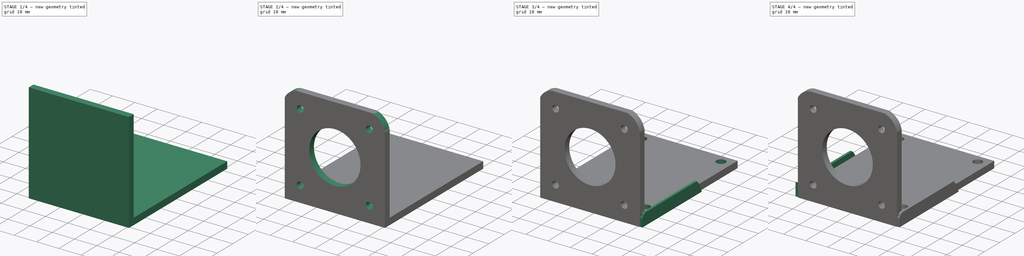
[diagram: build sequence overview — one tinted view per stage of 4, left to right]
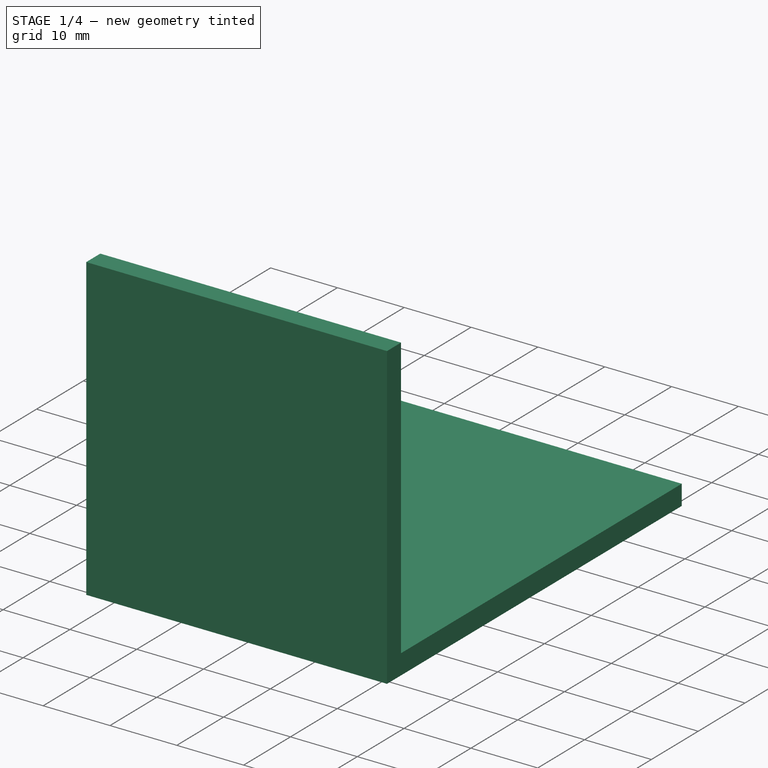
[diagram: stage 1 of 4 — iso view after this stage's code; geometry added in this stage tinted green]
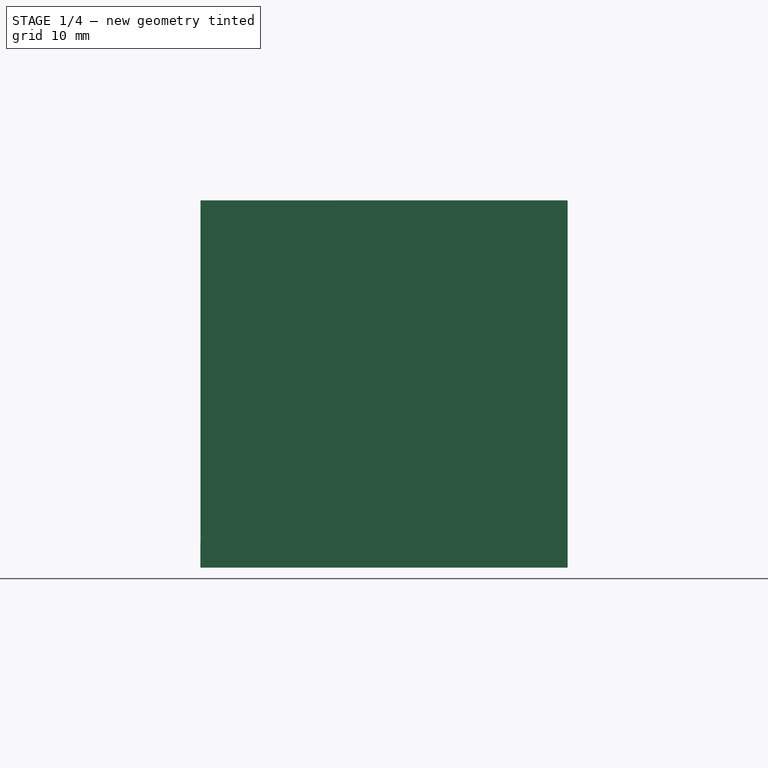
[diagram: stage 1 of 4 — front view after this stage's code; geometry added in this stage tinted green]
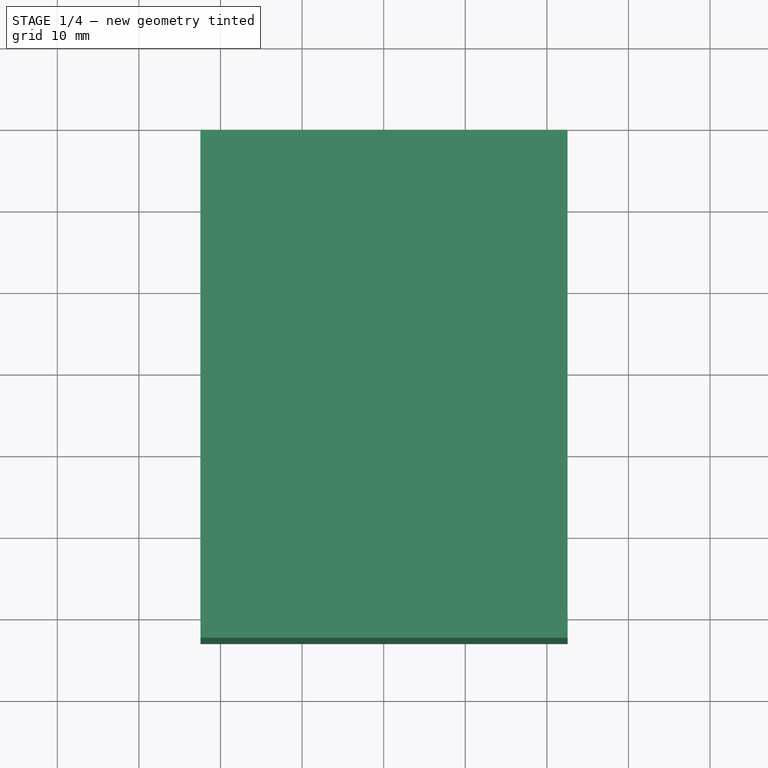
[diagram: stage 1 of 4 — top view after this stage's code; geometry added in this stage tinted green]
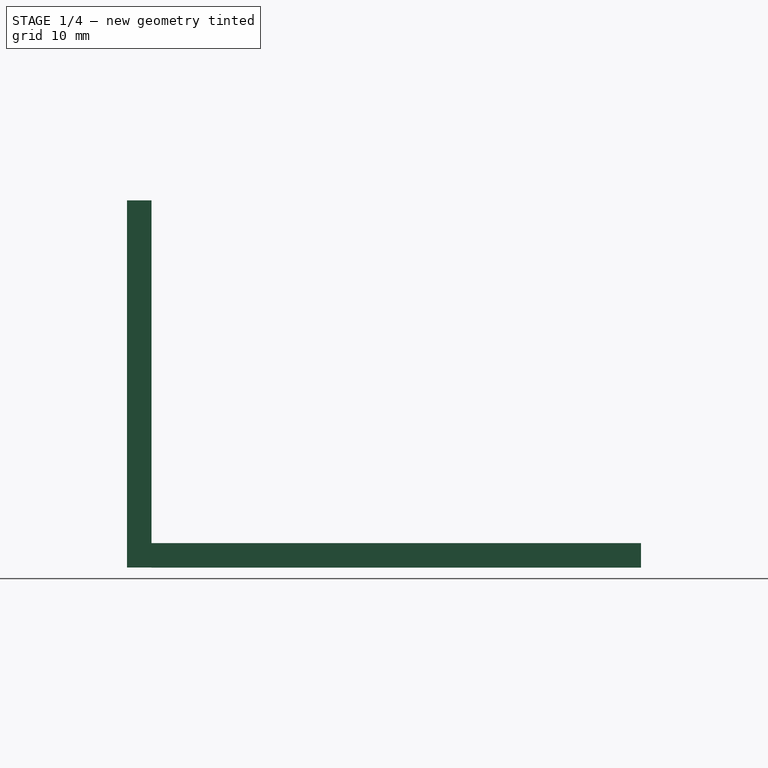
[diagram: stage 1 of 4 — right view after this stage's code; geometry added in this stage tinted green]
FCSTD DOCUMENT  (FreeCAD 1.0R39109 (Git))
Label: Motor soporte
License: All rights reserved
LicenseURL: https://en.wikipedia.org/wiki/All_rights_reserved
objects: TechDraw::DrawViewDimension×28, Sketcher::SketchObject×11, PartDesign::Pocket×5, PartDesign::Pad×4, TechDraw::DrawProjGroupItem×3, PartDesign::Body×1, TechDraw::DrawSVGTemplate×1, TechDraw::DrawViewImage×1, TechDraw::DrawPage×1
note: 85 computed .brp shape members not serialized (recipe doc carries the construction recipe); baked Part::Feature solids carry a one-line shape summary decoded from their .brp

FEATURE [Sketcher::SketchObject] Sketch
  ArcFitTolerance = 1e-06
  AttachmentSupport = -> [XZ_Plane]
  FullyConstrained = false
  MakeInternals = false
  MapMode = 5
  Placement = pos=(0,0,0) rot=(1,0,0;1.5708rad)
  sketch-geometry (5):
    g0: GeomPoint [constr] X=0 Y=0 Z=0
    g1: LineSegment StartX=-22.4568 StartY=0 StartZ=0 EndX=22.5432 EndY=0 EndZ=0
    g2: LineSegment StartX=22.5432 StartY=0 StartZ=0 EndX=22.5432 EndY=45 EndZ=0
    g3: LineSegment StartX=22.5432 StartY=45 StartZ=0 EndX=-22.4568 EndY=45 EndZ=0
    g4: LineSegment StartX=-22.4568 StartY=45 StartZ=0 EndX=-22.4568 EndY=0 EndZ=0
  constraints (12):
    c: Coincident(g0,g-1)
    c: Coincident(g1,g2)
    c: Coincident(g2,g3)
    c: Coincident(g3,g4)
    c: Coincident(g4,g1)
    c: Horizontal(g1)
    c: Horizontal(g3)
    c: Vertical(g2)
    c: Vertical(g4)
    c: Distance(g2,g4) = 45
    c: Distance(g1,g3) = 45
    c: PointOnObject(g1,g-1)
FEATURE [Sketcher::SketchObject] Sketch002
  ArcFitTolerance = 1e-06
  FullyConstrained = false
  MakeInternals = false
  MapMode = 5
  Placement = pos=(0,0,3) rot=(0,0,1;3.14159rad)
  sketch-geometry (6):
    g0: ArcOfCircle CenterX=-16.1899 CenterY=-33.9376 CenterZ=0 NormalX=0 NormalY=0 NormalZ=1 AngleXU=0 Radius=6.47853 StartAngle=3.14159 EndAngle=4.71239
    g1: LineSegment StartX=-22.6685 StartY=-33.9376 StartZ=0 EndX=-22.6685 EndY=-40.4161 EndZ=0
    g2: LineSegment StartX=-16.1899 StartY=-40.4161 StartZ=0 EndX=-22.6685 EndY=-40.4161 EndZ=0
    g3: ArcOfCircle CenterX=15.1827 CenterY=-33.4839 CenterZ=0 NormalX=0 NormalY=0 NormalZ=1 AngleXU=0 Radius=7.71013 StartAngle=4.95421 EndAngle=6.11137
    g4: LineSegment StartX=17.029 StartY=-40.9697 StartZ=0 EndX=22.8388 EndY=-40.9697 EndZ=0
    g5: LineSegment StartX=22.7793 StartY=-34.8021 StartZ=0 EndX=22.8388 EndY=-40.9697 EndZ=0
  constraints (9):
    c: Tangent(g1,g0) = -1.5708
    c: Vertical(g1)
    c: Tangent(g2,g0) = 1.5708
    c: Coincident(g2,g1)
    c: Horizontal(g2)
    c: Coincident(g4,g3)
    c: Horizontal(g4)
    c: Coincident(g5,g3)
    c: Coincident(g5,g4)
FEATURE [Sketcher::SketchObject] Sketch003
  ArcFitTolerance = 1e-06
  FullyConstrained = false
  MakeInternals = false
  MapMode = 5
  Placement = pos=(0,-2,0) rot=(1,0,0;1.5708rad)
  sketch-geometry (6):
    g0: ArcOfCircle CenterX=-15.9253 CenterY=37.8788 CenterZ=0 NormalX=0 NormalY=0 NormalZ=1 AngleXU=0 Radius=7.20465 StartAngle=1.59551 EndAngle=3.14159
    g1: LineSegment StartX=-23.13 StartY=37.8788 StartZ=0 EndX=-23.13 EndY=45.0813 EndZ=0
    g2: LineSegment StartX=-16.1034 StartY=45.0813 StartZ=0 EndX=-23.13 EndY=45.0813 EndZ=0
    g3: ArcOfCircle CenterX=14.4667 CenterY=37.1484 CenterZ=0 NormalX=0 NormalY=0 NormalZ=1 AngleXU=0 Radius=8.22076 StartAngle=0 EndAngle=1.5708
    g4: LineSegment StartX=14.4667 StartY=45.3692 StartZ=0 EndX=22.6874 EndY=45.3692 EndZ=0
    g5: LineSegment StartX=22.6874 StartY=37.1484 StartZ=0 EndX=22.6874 EndY=45.3692 EndZ=0
  constraints (10):
    c: Tangent(g1,g0) = 1.5708
    c: Vertical(g1)
    c: Coincident(g2,g0)
    c: Coincident(g2,g1)
    c: Horizontal(g2)
    c: Tangent(g4,g3) = 1.5708
    c: Horizontal(g4)
    c: Tangent(g5,g3) = -1.5708
    c: Coincident(g5,g4)
    c: Vertical(g5)
FEATURE [Sketcher::SketchObject] Sketch004
  ArcFitTolerance = 1e-06
  FullyConstrained = false
  MakeInternals = false
  MapMode = 5
  Placement = pos=(0,-2,0) rot=(1,0,0;1.5708rad)
  sketch-geometry (5):
    g0: Circle CenterX=0.049257 CenterY=22.56 CenterZ=0 NormalX=0 NormalY=0 NormalZ=1 AngleXU=0 Radius=11.5
    g1: Circle CenterX=15.4723 CenterY=7.06 CenterZ=0 NormalX=0 NormalY=0 NormalZ=1 AngleXU=0 Radius=1.5
    g2: Circle CenterX=-15.5277 CenterY=38.06 CenterZ=0 NormalX=0 NormalY=0 NormalZ=1 AngleXU=0 Radius=1.5
    g3: Circle CenterX=15.4723 CenterY=38.06 CenterZ=0 NormalX=0 NormalY=0 NormalZ=1 AngleXU=0 Radius=1.5
    g4: Circle CenterX=-15.5277 CenterY=7.06 CenterZ=0 NormalX=0 NormalY=0 NormalZ=1 AngleXU=0 Radius=1.5
  constraints (5):
    c: Diameter(g0) = 23
    c: Diameter(g1) = 3
    c: Diameter(g2) = 3
    c: Diameter(g3) = 3
    c: Diameter(g4) = 3
FEATURE [Sketcher::SketchObject] Sketch005
  ArcFitTolerance = 1e-06
  FullyConstrained = false
  MakeInternals = false
  MapMode = 5
  Placement = pos=(0,0,3) rot=(0,0,1;3.14159rad)
  sketch-geometry (4):
    g0: Circle CenterX=-17.8168 CenterY=-7.45832 CenterZ=0 NormalX=0 NormalY=0 NormalZ=1 AngleXU=0 Radius=2
    g1: Circle CenterX=18.0988 CenterY=-7.21443 CenterZ=0 NormalX=0 NormalY=0 NormalZ=1 AngleXU=0 Radius=2
    g2: Circle CenterX=-17.949 CenterY=-55.8412 CenterZ=0 NormalX=0 NormalY=0 NormalZ=1 AngleXU=0 Radius=2
    g3: Circle CenterX=17.5047 CenterY=-55.429 CenterZ=0 NormalX=0 NormalY=0 NormalZ=1 AngleXU=0 Radius=2
  constraints (4):
    c: Diameter(g0) = 4
    c: Diameter(g1) = 4
    c: Diameter(g2) = 4
    c: Diameter(g3) = 4
FEATURE [Sketcher::SketchObject] Sketch006
  ArcFitTolerance = 1e-06
  FullyConstrained = false
  MakeInternals = false
  MapMode = 5
  Placement = pos=(0,0,3) rot=(0,0,1;3.14159rad)
  sketch-geometry (4):
    g0: Circle CenterX=-17.8522 CenterY=-7.46173 CenterZ=0 NormalX=0 NormalY=0 NormalZ=1 AngleXU=0 Radius=1.5
    g1: Circle CenterX=18.0641 CenterY=-7.21573 CenterZ=0 NormalX=0 NormalY=0 NormalZ=1 AngleXU=0 Radius=1.5
    g2: Circle CenterX=17.4491 CenterY=-35.506 CenterZ=0 NormalX=0 NormalY=0 NormalZ=1 AngleXU=0 Radius=1.5
    g3: Circle CenterX=-17.9752 CenterY=-35.875 CenterZ=0 NormalX=0 NormalY=0 NormalZ=1 AngleXU=0 Radius=1.5
  constraints (4):
    c: Diameter(g0) = 3
    c: Diameter(g1) = 3
    c: Diameter(g2) = 3
    c: Diameter(g3) = 3
FEATURE [PartDesign::Pad] Pad
  Direction = (0,-1,2e-16)
  Length = 3
  Length2 = 10
  Placement = pos=(0,0,0) rot=(1,0,0;1.5708rad)
  Profile = -> Sketch
  ReferenceAxis = -> Sketch [N_Axis]
  Refine = true
  Suppressed = false
  Type = 0
FEATURE [Sketcher::SketchObject] Sketch007
  ArcFitTolerance = 1e-06
  AttachmentSupport = -> [Pad]
  FullyConstrained = false
  MakeInternals = false
  MapMode = 5
  Placement = pos=(0,5e-15,0) rot=(-1,0,0;1.5708rad)
  sketch-geometry (4):
    g0: LineSegment StartX=-22.463 StartY=-2.99343 StartZ=0 EndX=22.537 EndY=-2.99343 EndZ=0
    g1: LineSegment StartX=22.537 StartY=-2.99343 StartZ=0 EndX=22.537 EndY=0.006574 EndZ=0
    g2: LineSegment StartX=22.537 StartY=0.006574 StartZ=0 EndX=-22.463 EndY=0.006574 EndZ=0
    g3: LineSegment StartX=-22.463 StartY=0.006574 StartZ=0 EndX=-22.463 EndY=-2.99343 EndZ=0
  constraints (9):
    c: Coincident(g0,g1)
    c: Coincident(g1,g2)
    c: Coincident(g2,g3)
    c: Coincident(g3,g0)
    c: Horizontal(g0)
    c: Horizontal(g2)
    c: Vertical(g1)
    c: Vertical(g3)
    c: Distance(g0,g2) = 3
FEATURE [PartDesign::Pad] Pad001
  BaseFeature = -> Pad
  Direction = (0,1,2e-16)
  Length = 60
  Length2 = 10
  Placement = pos=(0,0,0) rot=(1,0,0;1.5708rad)
  Profile = -> Sketch007
  ReferenceAxis = -> Sketch007 [N_Axis]
  Refine = true
  Suppressed = false
  Type = 0
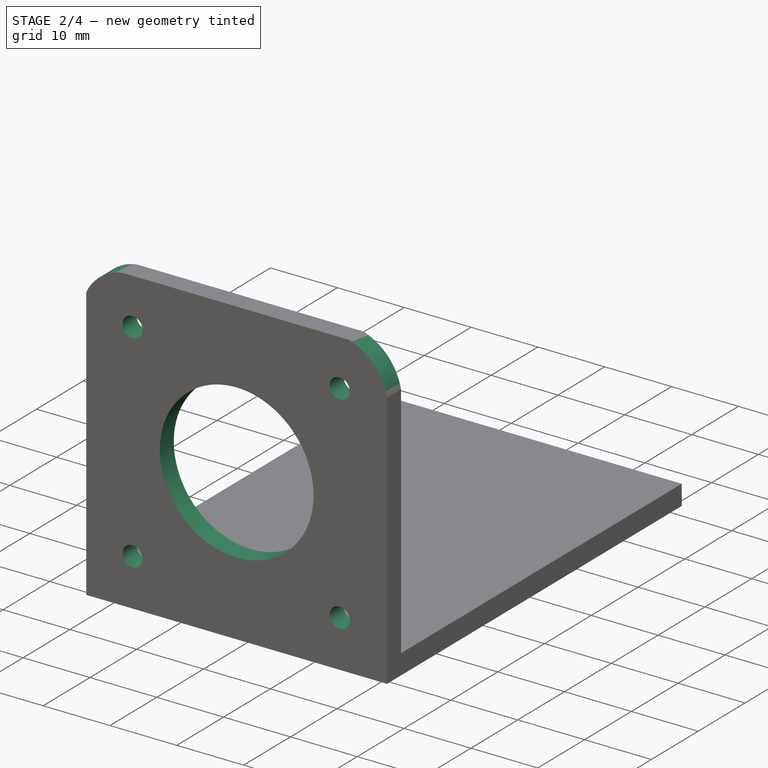
[diagram: stage 2 of 4 — iso view after this stage's code; geometry added in this stage tinted green]
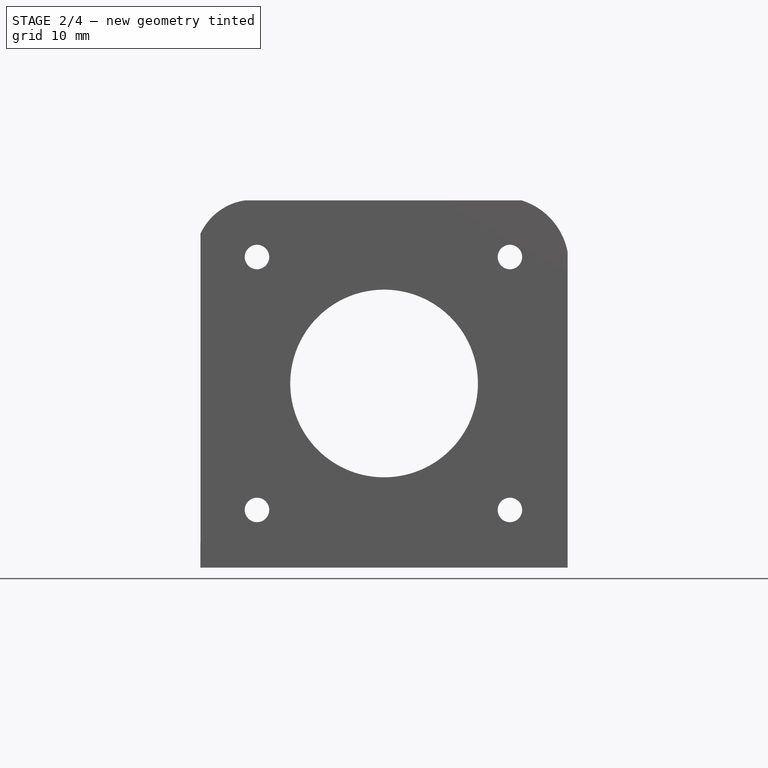
[diagram: stage 2 of 4 — front view after this stage's code; geometry added in this stage tinted green]
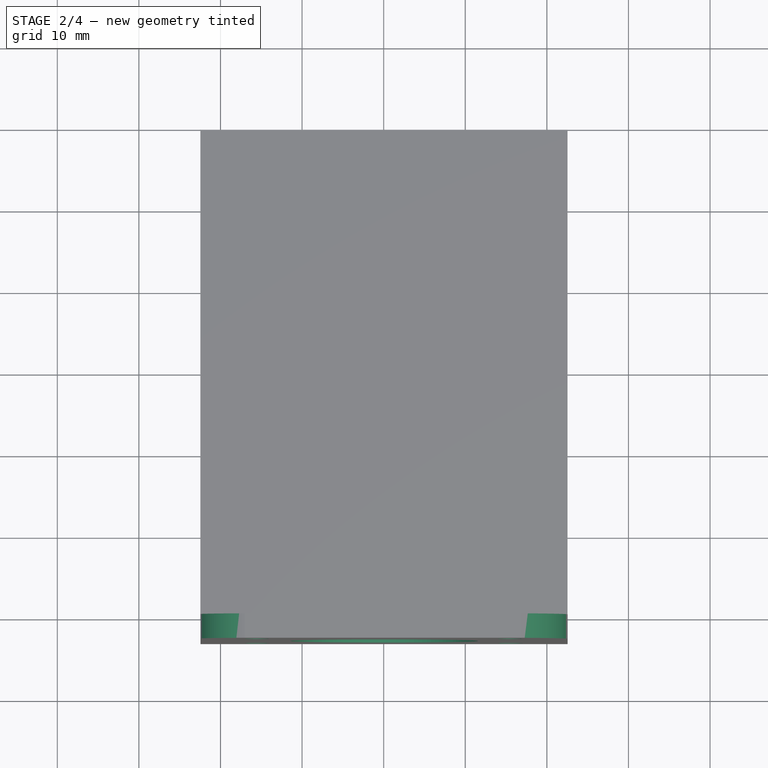
[diagram: stage 2 of 4 — top view after this stage's code; geometry added in this stage tinted green]
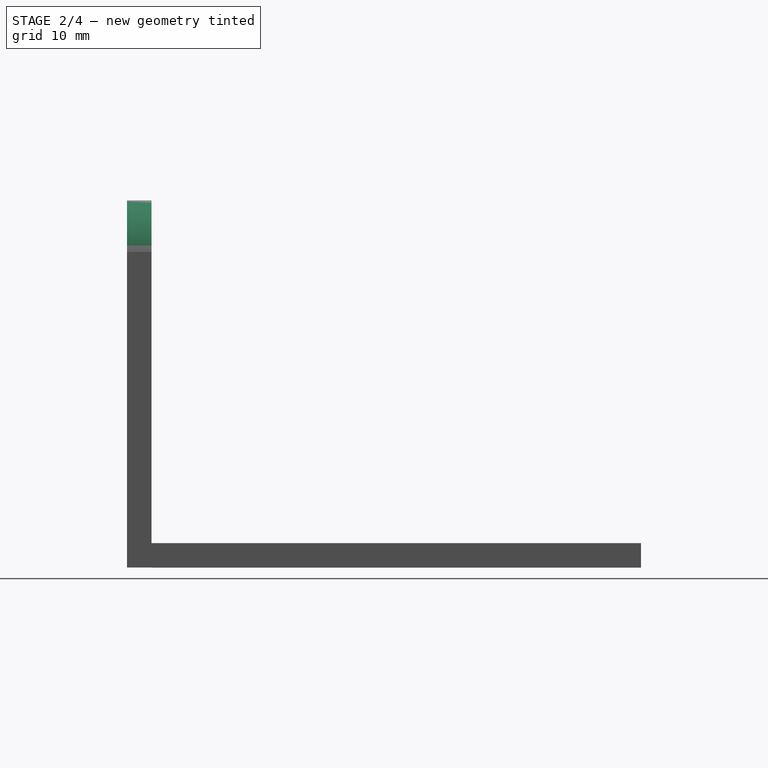
[diagram: stage 2 of 4 — right view after this stage's code; geometry added in this stage tinted green]
FEATURE [PartDesign::Pocket] Pocket
  BaseFeature = -> Pad001
  Direction = (0,1,0)
  Length = 5
  Length2 = 5
  Midplane = true
  Placement = pos=(0,0,0) rot=(1,0,0;1.5708rad)
  Profile = -> Sketch003
  ReferenceAxis = -> Sketch003 [N_Axis]
  Refine = true
  Suppressed = false
  Type = 0
FEATURE [PartDesign::Pocket] Pocket001
  BaseFeature = -> Pocket
  Direction = (0,1,0)
  Length = 6
  Length2 = 5
  Midplane = true
  Placement = pos=(0,0,0) rot=(1,0,0;1.5708rad)
  Profile = -> Sketch004
  ReferenceAxis = -> Sketch004 [N_Axis]
  Refine = true
  Suppressed = false
  Type = 0
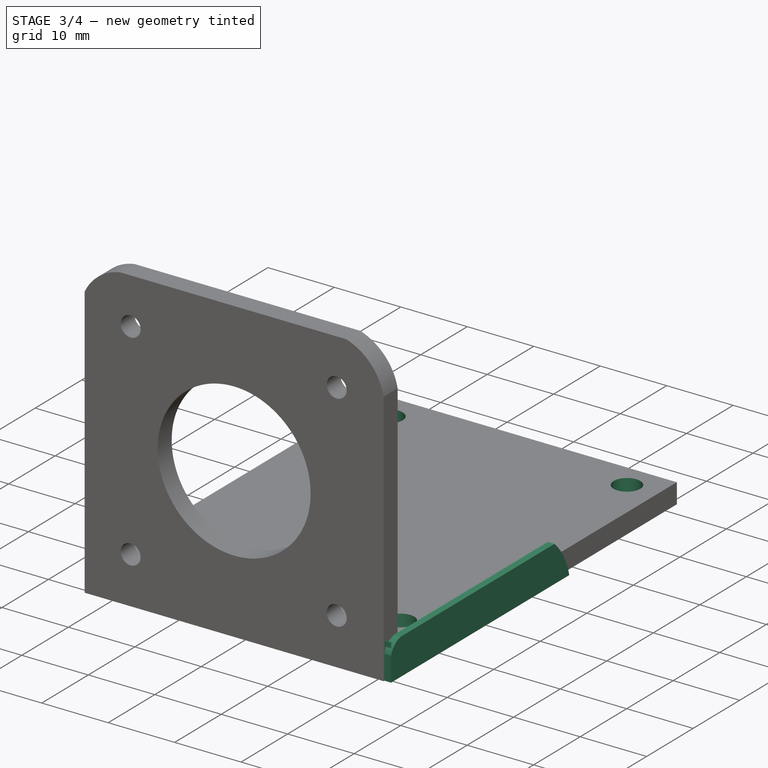
[diagram: stage 3 of 4 — iso view after this stage's code; geometry added in this stage tinted green]
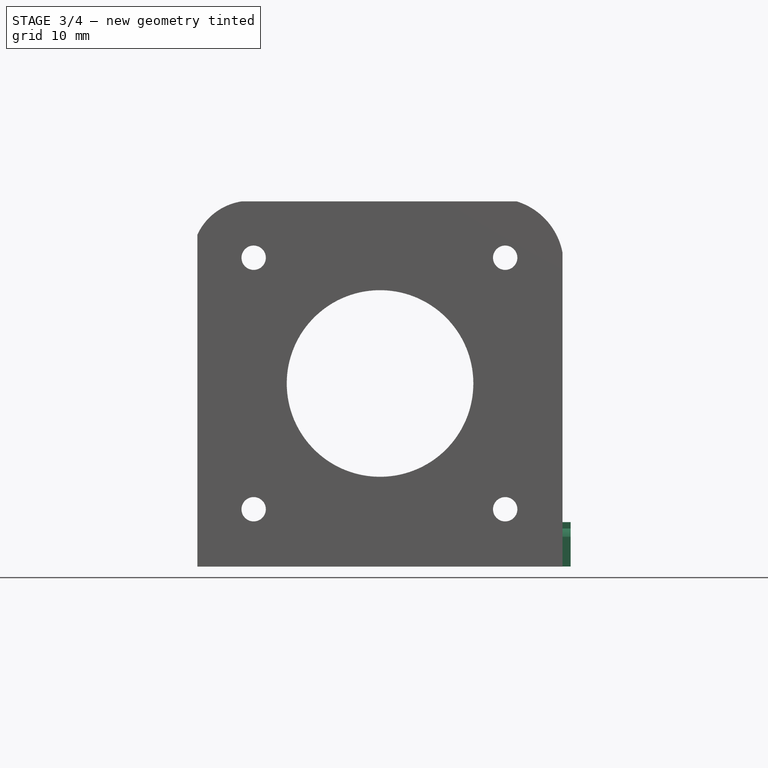
[diagram: stage 3 of 4 — front view after this stage's code; geometry added in this stage tinted green]
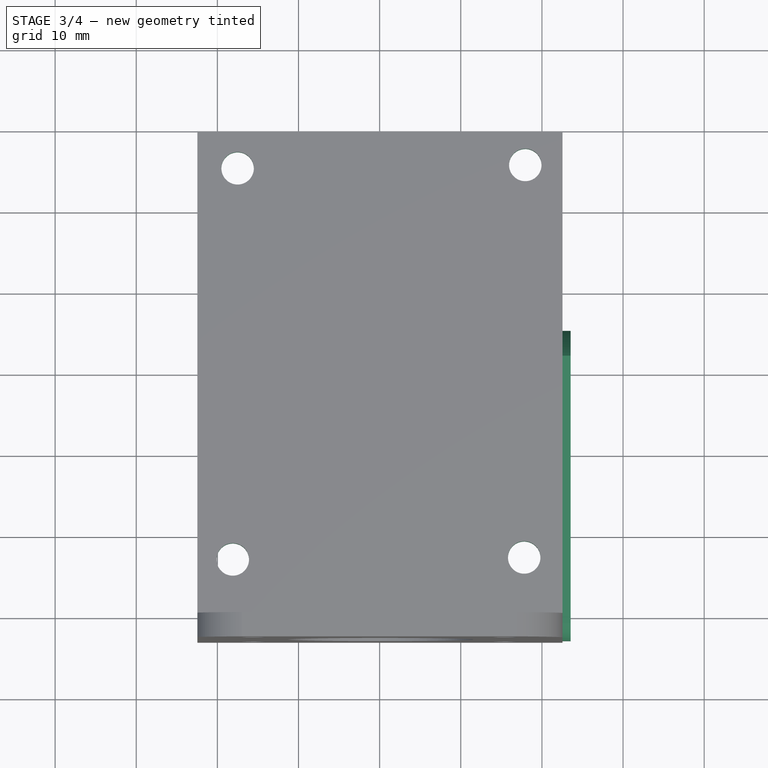
[diagram: stage 3 of 4 — top view after this stage's code; geometry added in this stage tinted green]
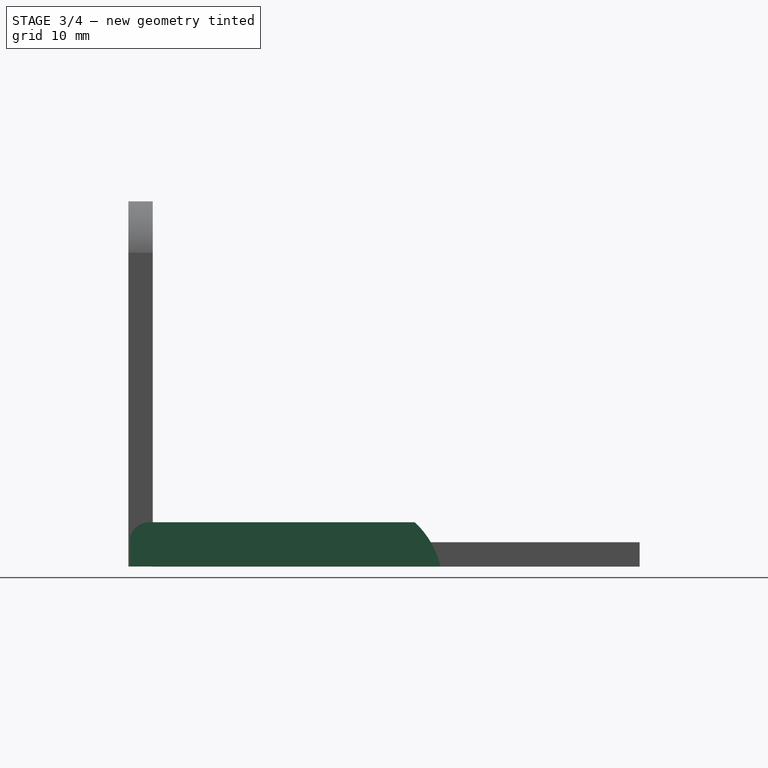
[diagram: stage 3 of 4 — right view after this stage's code; geometry added in this stage tinted green]
FEATURE [PartDesign::Pocket] Pocket002
  BaseFeature = -> Pocket001
  Direction = (0,0,-1)
  Length = 5
  Length2 = 5
  Placement = pos=(0,0,0) rot=(1,0,0;1.5708rad)
  Profile = -> Sketch005
  ReferenceAxis = -> Sketch005 [N_Axis]
  Refine = true
  Suppressed = false
  Type = 0
FEATURE [Sketcher::SketchObject] Sketch008
  ArcFitTolerance = 1e-06
  AttachmentSupport = -> [Pocket002]
  FullyConstrained = false
  MakeInternals = false
  MapMode = 5
  Placement = pos=(22.537,0,0) rot=(0.707107,0,0.707107;3.14159rad)
  sketch-geometry (4):
    g0: LineSegment StartX=0 StartY=2.82378 StartZ=0 EndX=0 EndY=-35.4439 EndZ=0
    g1: LineSegment StartX=0 StartY=-35.4439 StartZ=0 EndX=5.46647 EndY=-35.4439 EndZ=0
    g2: LineSegment StartX=5.46647 StartY=-35.4439 StartZ=0 EndX=5.46647 EndY=2.82378 EndZ=0
    g3: LineSegment StartX=5.46647 StartY=2.82378 StartZ=0 EndX=0 EndY=2.82378 EndZ=0
  constraints (9):
    c: Coincident(g0,g1)
    c: Coincident(g1,g2)
    c: Coincident(g2,g3)
    c: Coincident(g3,g0)
    c: Vertical(g0)
    c: Vertical(g2)
    c: Horizontal(g1)
    c: Horizontal(g3)
    c: PointOnObject(g0,g-2)
FEATURE [PartDesign::Pad] Pad002
  BaseFeature = -> Pocket002
  Direction = (1,0,-2e-16)
  Length = 1
  Length2 = 10
  Placement = pos=(0,0,0) rot=(1,0,0;1.5708rad)
  Profile = -> Sketch008
  ReferenceAxis = -> Sketch008 [N_Axis]
  Refine = true
  Suppressed = false
  Type = 0
FEATURE [Sketcher::SketchObject] Sketch009
  ArcFitTolerance = 1e-06
  AttachmentSupport = -> [Pad002]
  FullyConstrained = false
  MakeInternals = false
  MapMode = 5
  Placement = pos=(23.537,0,0) rot=(0.707107,0,0.707107;3.14159rad)
  sketch-geometry (7):
    g0: ArcOfCircle CenterX=2.84704 CenterY=0.31021 CenterZ=0 NormalX=0 NormalY=0 NormalZ=1 AngleXU=0 Radius=2.64424 StartAngle=6.11689 EndAngle=7.65594
    g1: ArcOfCircle CenterX=-2.5102 CenterY=-24.8626 CenterZ=0 NormalX=0 NormalY=0 NormalZ=1 AngleXU=0 Radius=10.8961 StartAngle=4.94485 EndAngle=5.53217
    g2: LineSegment StartX=3.36729 StartY=2.90276 StartZ=0 EndX=7.96368 EndY=2.62636 EndZ=0
    g3: LineSegment StartX=7.96368 StartY=2.62636 StartZ=0 EndX=7.96368 EndY=-32.5246 EndZ=0
    g4: LineSegment StartX=7.96368 StartY=-32.5246 StartZ=0 EndX=6.48222 EndY=-36.0262 EndZ=0
    g5: LineSegment StartX=6.48222 StartY=-36.0262 StartZ=0 EndX=0 EndY=-35.4656 EndZ=0
    g6: LineSegment StartX=5.4548 StartY=-0.127493 StartZ=0 EndX=5.4548 EndY=-32.2979 EndZ=0
  constraints (10):
    c: PointOnObject(g1,g-2)
    c: Coincident(g2,g0)
    c: Coincident(g3,g2)
    c: Vertical(g3)
    c: Coincident(g4,g3)
    c: Coincident(g5,g4)
    c: Coincident(g5,g1)
    c: Coincident(g6,g0)
    c: Coincident(g6,g1)
    c: Vertical(g6)
FEATURE [PartDesign::Pocket] Pocket003
  BaseFeature = -> Pad002
  Direction = (-1,0,2e-16)
  Length = 1
  Length2 = 5
  Placement = pos=(0,0,0) rot=(1,0,0;1.5708rad)
  Profile = -> Sketch009
  ReferenceAxis = -> Sketch009 [N_Axis]
  Refine = true
  Suppressed = false
  Type = 0
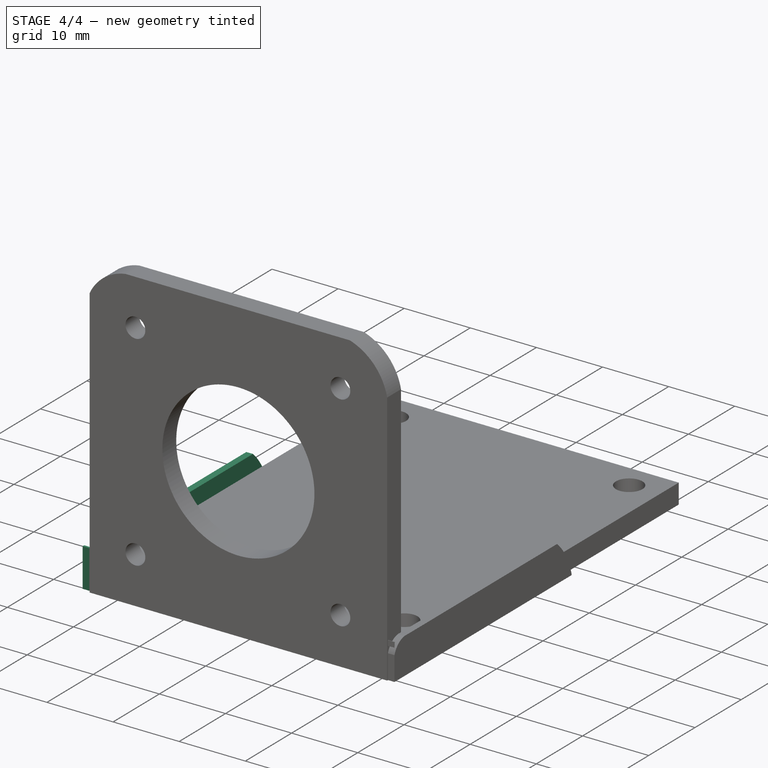
[diagram: stage 4 of 4 — iso view after this stage's code; geometry added in this stage tinted green]
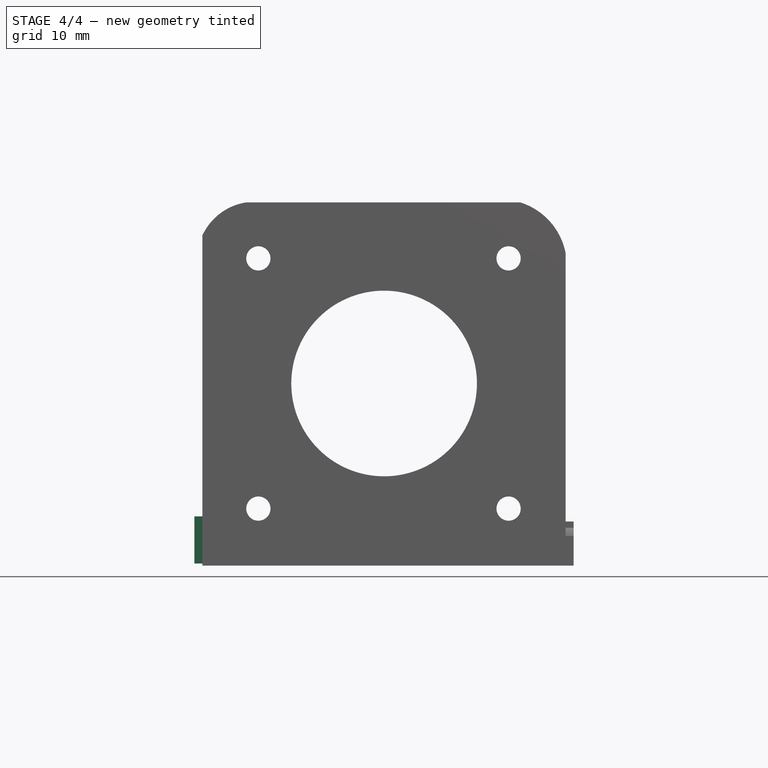
[diagram: stage 4 of 4 — front view after this stage's code; geometry added in this stage tinted green]
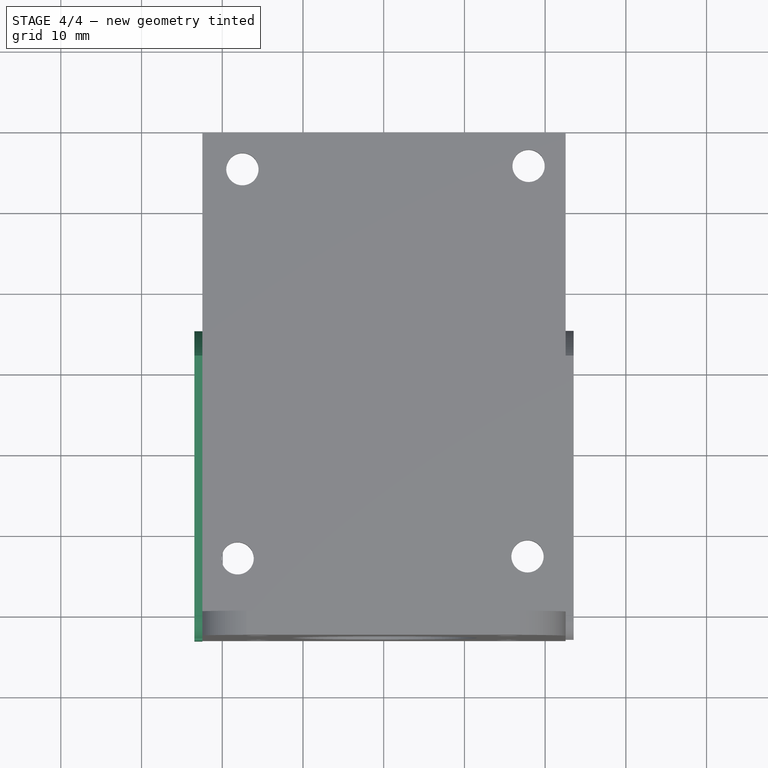
[diagram: stage 4 of 4 — top view after this stage's code; geometry added in this stage tinted green]
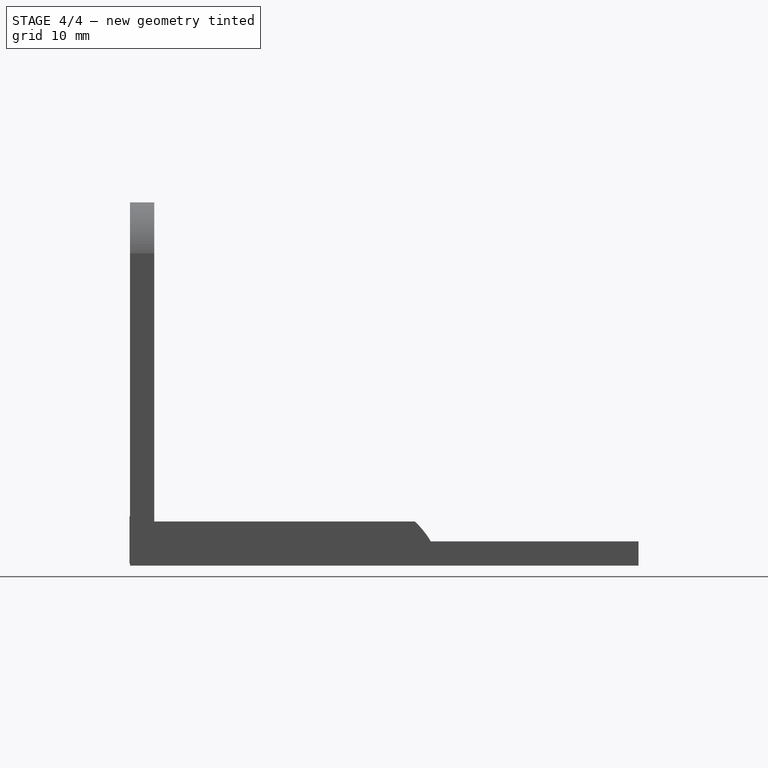
[diagram: stage 4 of 4 — right view after this stage's code; geometry added in this stage tinted green]
FEATURE [Sketcher::SketchObject] Sketch010
  ArcFitTolerance = 1e-06
  AttachmentSupport = -> [Pocket003]
  FullyConstrained = false
  MakeInternals = false
  MapMode = 5
  Placement = pos=(-22.463,0,0) rot=(0.707107,0,-0.707107;3.14159rad)
  sketch-geometry (4):
    g0: LineSegment StartX=-6.09006 StartY=3.06156 StartZ=0 EndX=-6.09006 EndY=-35.4439 EndZ=0
    g1: LineSegment StartX=-6.09006 StartY=-35.4439 StartZ=0 EndX=-0.259638 EndY=-35.4439 EndZ=0
    g2: LineSegment StartX=-0.259638 StartY=-35.4439 StartZ=0 EndX=-0.259638 EndY=3.06156 EndZ=0
    g3: LineSegment StartX=-0.259638 StartY=3.06156 StartZ=0 EndX=-6.09006 EndY=3.06156 EndZ=0
  constraints (8):
    c: Coincident(g0,g1)
    c: Coincident(g1,g2)
    c: Coincident(g2,g3)
    c: Coincident(g3,g0)
    c: Vertical(g0)
    c: Vertical(g2)
    c: Horizontal(g1)
    c: Horizontal(g3)
FEATURE [PartDesign::Pad] Pad003
  BaseFeature = -> Pocket003
  Direction = (-1,0,-2e-16)
  Length = 1
  Length2 = 10
  Placement = pos=(0,0,0) rot=(1,0,0;1.5708rad)
  Profile = -> Sketch010
  ReferenceAxis = -> Sketch010 [N_Axis]
  Refine = true
  Suppressed = false
  Type = 0
FEATURE [Sketcher::SketchObject] Sketch011
  ArcFitTolerance = 1e-06
  AttachmentSupport = -> [Pad003]
  FullyConstrained = false
  MakeInternals = false
  MapMode = 5
  Placement = pos=(-23.463,0,0) rot=(0.707107,0,-0.707107;3.14159rad)
  sketch-geometry (7):
    g0: ArcOfCircle CenterX=-2.84704 CenterY=0.310209 CenterZ=0 NormalX=0 NormalY=0 NormalZ=1 AngleXU=0 Radius=2.64424 StartAngle=1.76884 EndAngle=3.30789
    g1: ArcOfCircle CenterX=2.5102 CenterY=-24.8626 CenterZ=0 NormalX=0 NormalY=0 NormalZ=1 AngleXU=0 Radius=10.8961 StartAngle=3.89261 EndAngle=4.47992
    g2: LineSegment StartX=-3.36729 StartY=2.90276 StartZ=0 EndX=-7.96368 EndY=2.62636 EndZ=0
    g3: LineSegment StartX=-7.96368 StartY=2.62636 StartZ=0 EndX=-7.96368 EndY=-32.5246 EndZ=0
    g4: LineSegment StartX=-7.96368 StartY=-32.5246 StartZ=0 EndX=-6.48222 EndY=-36.0262 EndZ=0
    g5: LineSegment StartX=-6.48222 StartY=-36.0262 StartZ=0 EndX=-5.15e-14 EndY=-35.4656 EndZ=0
    g6: LineSegment StartX=-5.4548 StartY=-0.127493 StartZ=0 EndX=-5.4548 EndY=-32.2979 EndZ=0
  constraints (9):
    c: Coincident(g2,g0)
    c: Coincident(g3,g2)
    c: Vertical(g3)
    c: Coincident(g4,g3)
    c: Coincident(g5,g4)
    c: Coincident(g5,g1)
    c: Coincident(g6,g0)
    c: Coincident(g6,g1)
    c: Vertical(g6)
FEATURE [PartDesign::Pocket] Pocket004
  BaseFeature = -> Pad003
  Direction = (1,0,2e-16)
  Length = 1
  Length2 = 5
  Placement = pos=(0,0,0) rot=(1,0,0;1.5708rad)
  Profile = -> Sketch011
  ReferenceAxis = -> Sketch011 [N_Axis]
  Refine = true
  Suppressed = false
  Type = 0
FEATURE [PartDesign::Body] Body
  AllowCompound = false
  Group = -> [Sketch,Sketch002,Sketch003,Sketch004,Sketch005,Sketch006,Pad,Sketch007,Pad001,Pocket,Pocket001,Pocket002,Sketch008,Pad002,Sketch009,Pocket003,Sketch010,Pad003,Sketch011,Pocket004]
  Origin = -> Origin
  Tip = -> Pocket004
FEATURE [TechDraw::DrawSVGTemplate] Template  label="Plantilla"
  EditableTexts = approval_person=B. Hecate; creator=A. Nemesis; date_of_issue=20/10/2025; document_type=Assembly Drawing; general_tolerances=ISO 2768-m; identification_number=DN; language_code=EN; part_material=Stainless steel Mat.No. 1.4301; revision_index=AAA; sheet_number=1 / 1; sheet_scale=1 : 1; title=Motor soporte
  Height = 297
  Orientation = 1
  Template = C:/Program Files/FreeCAD 1.0/data/Mod/TechDraw/Templates/A3_Landscape_ISO5457_minimal.svg
  Width = 420
FEATURE [TechDraw::DrawProjGroupItem] View
  CoarseView = false
  Direction = (0,-1,0)
  Focus = 100
  HardHidden = false
  IsoCount = 0
  IsoHidden = false
  IsoVisible = false
  LockPosition = false
  Perspective = false
  Rotation = 0
  RotationVector = (1,0,0)
  Scale = 2
  ScaleType = 2
  ScrubCount = 1
  SeamHidden = false
  SeamVisible = false
  SmoothHidden = false
  SmoothVisible = true
  Source = -> [Body]
  Type = 0
  X = 313.835
  XDirection = (1,0,0)
  Y = 226.975
FEATURE [TechDraw::DrawViewDimension] Dimension  label="Cota"
  AngleOverride = false
  Arbitrary = false
  ArbitraryTolerances = false
  BoxCorners = (2) [(-47,-45.0066,-1e-07),(47,45.0066,1e-07)]
  EqualTolerance = true
  ExtensionAngle = 0
  FormatSpec = %.2w
  FormatSpecOverTolerance = %+.2w
  FormatSpecUnderTolerance = %+.2w
  Inverted = false
  LineAngle = 0
  LockPosition = false
  MeasureType = 1
  OverTolerance = 0
  References2D = -> [View]
  Rotation = 0
  ScaleType = 0
  TheoreticalExact = false
  Type = 1
  UnderTolerance = 0
  X = 0.012396
  Y = -50.2967
FEATURE [TechDraw::DrawViewDimension] Dimension001  label="Cota001"
  AngleOverride = false
  Arbitrary = false
  ArbitraryTolerances = false
  BoxCorners = (2) [(-47,-45.0066,-1e-07),(47,45.0066,1e-07)]
  EqualTolerance = true
  ExtensionAngle = 0
  FormatSpec = %.2w
  FormatSpecOverTolerance = %+.2w
  FormatSpecUnderTolerance = %+.2w
  Inverted = false
  LineAngle = 0
  LockPosition = false
  MeasureType = 1
  OverTolerance = 0
  References2D = -> [View]
  Rotation = 0
  ScaleType = 0
  TheoreticalExact = false
  Type = 1
  UnderTolerance = 0
  X = -0.190243
  Y = 54.1813
FEATURE [TechDraw::DrawViewDimension] Dimension002  label="Cota002"
  AngleOverride = false
  Arbitrary = false
  ArbitraryTolerances = false
  BoxCorners = (2) [(-47,-45.0066,-1e-07),(47,45.0066,1e-07)]
  EqualTolerance = true
  ExtensionAngle = 0
  FormatSpec = %.2w
  FormatSpecOverTolerance = %+.2w
  FormatSpecUnderTolerance = %+.2w
  Inverted = false
  LineAngle = 0
  LockPosition = false
  MeasureType = 1
  OverTolerance = 0
  References2D = -> [View]
  Rotation = 0
  ScaleType = 0
  TheoreticalExact = false
  Type = 2
  UnderTolerance = 0
  X = -73.5573
  Y = 13.3353
FEATURE [TechDraw::DrawViewDimension] Dimension003  label="Cota003"
  AngleOverride = false
  Arbitrary = false
  ArbitraryTolerances = false
  BoxCorners = (2) [(-47,-45.0066,-1e-07),(47,45.0066,1e-07)]
  EqualTolerance = true
  ExtensionAngle = 0
  FormatSpec = %.2w
  FormatSpecOverTolerance = %+.2w
  FormatSpecUnderTolerance = %+.2w
  Inverted = false
  LineAngle = 0
  LockPosition = false
  MeasureType = 1
  OverTolerance = 0
  References2D = -> [View]
  Rotation = 0
  ScaleType = 0
  TheoreticalExact = false
  Type = 2
  UnderTolerance = 0
  X = 66.7848
  Y = 12.3141
FEATURE [TechDraw::DrawViewDimension] Dimension004  label="Cota004"
  AngleOverride = false
  Arbitrary = false
  ArbitraryTolerances = false
  BoxCorners = (2) [(-47,-45.0066,-1e-07),(47,45.0066,1e-07)]
  EqualTolerance = true
  ExtensionAngle = 0
  FormatSpec = ⌀%.2w
  FormatSpecOverTolerance = %+.2w
  FormatSpecUnderTolerance = %+.2w
  Inverted = false
  LineAngle = 0
  LockPosition = false
  MeasureType = 1
  OverTolerance = 0
  References2D = -> [View]
  Rotation = 0
  ScaleType = 0
  TheoreticalExact = false
  Type = 5
  UnderTolerance = 0
  X = -50.7157
  Y = 49.0414
FEATURE [TechDraw::DrawViewDimension] Dimension005  label="Cota005"
  AngleOverride = false
  Arbitrary = false
  ArbitraryTolerances = false
  BoxCorners = (2) [(-47,-45.0066,-1e-07),(47,45.0066,1e-07)]
  EqualTolerance = true
  ExtensionAngle = 0
  FormatSpec = ⌀%.2w
  FormatSpecOverTolerance = %+.2w
  FormatSpecUnderTolerance = %+.2w
  Inverted = false
  LineAngle = 0
  LockPosition = false
  MeasureType = 1
  OverTolerance = 0
  References2D = -> [View]
  Rotation = 0
  ScaleType = 0
  TheoreticalExact = false
  Type = 5
  UnderTolerance = 0
  X = 55.2795
  Y = 50.4003
FEATURE [TechDraw::DrawViewDimension] Dimension006  label="Cota006"
  AngleOverride = false
  Arbitrary = false
  ArbitraryTolerances = false
  BoxCorners = (2) [(-47,-45.0066,-1e-07),(47,45.0066,1e-07)]
  EqualTolerance = true
  ExtensionAngle = 0
  FormatSpec = ⌀%.2w
  FormatSpecOverTolerance = %+.2w
  FormatSpecUnderTolerance = %+.2w
  Inverted = false
  LineAngle = 0
  LockPosition = false
  MeasureType = 1
  OverTolerance = 0
  References2D = -> [View]
  Rotation = 0
  ScaleType = 0
  TheoreticalExact = false
  Type = 5
  UnderTolerance = 0
  X = -56.8308
  Y = -56.6141
FEATURE [TechDraw::DrawViewDimension] Dimension007  label="Cota007"
  AngleOverride = false
  Arbitrary = false
  ArbitraryTolerances = false
  BoxCorners = (2) [(-47,-45.0066,-1e-07),(47,45.0066,1e-07)]
  EqualTolerance = true
  ExtensionAngle = 0
  FormatSpec = ⌀%.2w
  FormatSpecOverTolerance = %+.2w
  FormatSpecUnderTolerance = %+.2w
  Inverted = false
  LineAngle = 0
  LockPosition = false
  MeasureType = 1
  OverTolerance = 0
  References2D = -> [View]
  Rotation = 0
  ScaleType = 0
  TheoreticalExact = false
  Type = 5
  UnderTolerance = 0
  X = 64.1124
  Y = -59.6717
FEATURE [TechDraw::DrawViewDimension] Dimension008  label="Cota008"
  AngleOverride = false
  Arbitrary = false
  ArbitraryTolerances = false
  BoxCorners = (2) [(-47,-45.0066,-1e-07),(47,45.0066,1e-07)]
  EqualTolerance = true
  ExtensionAngle = 0
  FormatSpec = ⌀%.2w
  FormatSpecOverTolerance = %+.2w
  FormatSpecUnderTolerance = %+.2w
  Inverted = false
  LineAngle = 0
  LockPosition = false
  MeasureType = 1
  OverTolerance = 0
  References2D = -> [View]
  Rotation = 0
  ScaleType = 0
  TheoreticalExact = false
  Type = 5
  UnderTolerance = 0
  X = 39.1753
  Y = 4.19724
FEATURE [TechDraw::DrawViewDimension] Dimension009  label="Cota009"
  AngleOverride = false
  Arbitrary = false
  ArbitraryTolerances = false
  BoxCorners = (2) [(-47,-45.0066,-1e-07),(47,45.0066,1e-07)]
  EqualTolerance = true
  ExtensionAngle = 0
  FormatSpec = %.2w
  FormatSpecOverTolerance = %+.2w
  FormatSpecUnderTolerance = %+.2w
  Inverted = false
  LineAngle = 0
  LockPosition = false
  MeasureType = 1
  OverTolerance = 0
  References2D = -> [View]
  Rotation = 0
  ScaleType = 0
  TheoreticalExact = false
  Type = 0
  UnderTolerance = 0
  X = -0.129268
  Y = 28.6564
FEATURE [TechDraw::DrawViewDimension] Dimension010  label="Cota010"
  AngleOverride = false
  Arbitrary = false
  ArbitraryTolerances = false
  BoxCorners = (2) [(-47,-45.0066,-1e-07),(47,45.0066,1e-07)]
  EqualTolerance = true
  ExtensionAngle = 0
  FormatSpec = %.2w
  FormatSpecOverTolerance = %+.2w
  FormatSpecUnderTolerance = %+.2w
  Inverted = false
  LineAngle = 0
  LockPosition = false
  MeasureType = 1
  OverTolerance = 0
  References2D = -> [View]
  Rotation = 0
  ScaleType = 0
  TheoreticalExact = false
  Type = 0
  UnderTolerance = 0
  X = -41.566
  Y = 16.7896
FEATURE [TechDraw::DrawProjGroupItem] View001
  CoarseView = false
  Direction = (0,0,-1)
  Focus = 100
  HardHidden = false
  IsoCount = 0
  IsoHidden = false
  IsoVisible = false
  LockPosition = false
  Perspective = false
  Rotation = 0
  RotationVector = (1,0,0)
  Scale = 2
  ScaleType = 2
  ScrubCount = 1
  SeamHidden = false
  SeamVisible = false
  SmoothHidden = false
  SmoothVisible = true
  Source = -> [Body]
  Type = 0
  X = 313.835
  XDirection = (1e-16,1,0)
  Y = 109.659
FEATURE [TechDraw::DrawViewDimension] Dimension011  label="Cota011"
  AngleOverride = false
  Arbitrary = false
  ArbitraryTolerances = false
  BoxCorners = (2) [(-63.0616,-47,0),(63.0616,47,0)]
  EqualTolerance = true
  ExtensionAngle = 0
  FormatSpec = %.2w
  FormatSpecOverTolerance = %+.2w
  FormatSpecUnderTolerance = %+.2w
  Inverted = false
  LineAngle = 0
  LockPosition = false
  MeasureType = 1
  OverTolerance = 0
  References2D = -> [View001]
  Rotation = 0
  ScaleType = 0
  TheoreticalExact = false
  Type = 2
  UnderTolerance = 0
  X = 77.0268
  Y = 22.8444
FEATURE [TechDraw::DrawViewDimension] Dimension012  label="Cota012"
  AngleOverride = false
  Arbitrary = false
  ArbitraryTolerances = false
  BoxCorners = (2) [(-63.0616,-47,0),(63.0616,47,0)]
  EqualTolerance = true
  ExtensionAngle = 0
  FormatSpec = %.2w
  FormatSpecOverTolerance = %+.2w
  FormatSpecUnderTolerance = %+.2w
  Inverted = false
  LineAngle = 0
  LockPosition = false
  MeasureType = 1
  OverTolerance = 0
  References2D = -> [View001]
  Rotation = 0
  ScaleType = 0
  TheoreticalExact = false
  Type = 1
  UnderTolerance = 0
  X = 28.7665
  Y = 24.1731
FEATURE [TechDraw::DrawViewDimension] Dimension013  label="Cota013"
  AngleOverride = false
  Arbitrary = false
  ArbitraryTolerances = false
  BoxCorners = (2) [(-63.0616,-47,0),(63.0616,47,0)]
  EqualTolerance = true
  ExtensionAngle = 0
  FormatSpec = ⌀%.2w
  FormatSpecOverTolerance = %+.2w
  FormatSpecUnderTolerance = %+.2w
  Inverted = false
  LineAngle = 0
  LockPosition = false
  MeasureType = 1
  OverTolerance = 0
  References2D = -> [View001]
  Rotation = 0
  ScaleType = 0
  TheoreticalExact = false
  Type = 5
  UnderTolerance = 0
  X = -32.4857
  Y = 34.1031
FEATURE [TechDraw::DrawViewDimension] Dimension014  label="Cota014"
  AngleOverride = false
  Arbitrary = false
  ArbitraryTolerances = false
  BoxCorners = (2) [(-63.0616,-47,0),(63.0616,47,0)]
  EqualTolerance = true
  ExtensionAngle = 0
  FormatSpec = ⌀%.2w
  FormatSpecOverTolerance = %+.2w
  FormatSpecUnderTolerance = %+.2w
  Inverted = false
  LineAngle = 0
  LockPosition = false
  MeasureType = 1
  OverTolerance = 0
  References2D = -> [View001]
  Rotation = 0
  ScaleType = 0
  TheoreticalExact = false
  Type = 5
  UnderTolerance = 0
  X = 60.499
  Y = 44.7459
FEATURE [TechDraw::DrawViewDimension] Dimension015  label="Cota015"
  AngleOverride = false
  Arbitrary = false
  ArbitraryTolerances = false
  BoxCorners = (2) [(-63.0616,-47,0),(63.0616,47,0)]
  EqualTolerance = true
  ExtensionAngle = 0
  FormatSpec = ⌀%.2w
  FormatSpecOverTolerance = %+.2w
  FormatSpecUnderTolerance = %+.2w
  Inverted = false
  LineAngle = 0
  LockPosition = false
  MeasureType = 1
  OverTolerance = 0
  References2D = -> [View001]
  Rotation = 0
  ScaleType = 0
  TheoreticalExact = false
  Type = 5
  UnderTolerance = 0
  X = 60.2189
  Y = -33.1147
FEATURE [TechDraw::DrawViewDimension] Dimension016  label="Cota016"
  AngleOverride = false
  Arbitrary = false
  ArbitraryTolerances = false
  BoxCorners = (2) [(-63.0616,-47,0),(63.0616,47,0)]
  EqualTolerance = true
  ExtensionAngle = 0
  FormatSpec = ⌀%.2w
  FormatSpecOverTolerance = %+.2w
  FormatSpecUnderTolerance = %+.2w
  Inverted = false
  LineAngle = 0
  LockPosition = false
  MeasureType = 1
  OverTolerance = 0
  References2D = -> [View001]
  Rotation = 0
  ScaleType = 0
  TheoreticalExact = false
  Type = 5
  UnderTolerance = 0
  X = -31.3654
  Y = -33.9549
FEATURE [TechDraw::DrawViewDimension] Dimension017  label="Cota017"
  AngleOverride = false
  Arbitrary = false
  ArbitraryTolerances = false
  BoxCorners = (2) [(-63.0616,-47,0),(63.0616,47,0)]
  EqualTolerance = true
  ExtensionAngle = 0
  FormatSpec = %.2w
  FormatSpecOverTolerance = %+.2w
  FormatSpecUnderTolerance = %+.2w
  Inverted = false
  LineAngle = 0
  LockPosition = false
  MeasureType = 1
  OverTolerance = 0
  References2D = -> [View001]
  Rotation = 0
  ScaleType = 0
  TheoreticalExact = false
  Type = 0
  UnderTolerance = 0
  X = 24.2661
  Y = 50.0763
FEATURE [TechDraw::DrawViewDimension] Dimension018  label="Cota018"
  AngleOverride = false
  Arbitrary = false
  ArbitraryTolerances = false
  BoxCorners = (2) [(-63.0616,-47,0),(63.0616,47,0)]
  EqualTolerance = true
  ExtensionAngle = 0
  FormatSpec = %.2w
  FormatSpecOverTolerance = %+.2w
  FormatSpecUnderTolerance = %+.2w
  Inverted = false
  LineAngle = 0
  LockPosition = false
  MeasureType = 1
  OverTolerance = 0
  References2D = -> [View001]
  Rotation = 0
  ScaleType = 0
  TheoreticalExact = false
  Type = 0
  UnderTolerance = 0
  X = 20.9867
  Y = -39.1449
FEATURE [TechDraw::DrawViewDimension] Dimension019  label="Cota019"
  AngleOverride = false
  Arbitrary = false
  ArbitraryTolerances = false
  BoxCorners = (2) [(-63.0616,-47,0),(63.0616,47,0)]
  EqualTolerance = true
  ExtensionAngle = 0
  FormatSpec = %.2w
  FormatSpecOverTolerance = %+.2w
  FormatSpecUnderTolerance = %+.2w
  Inverted = false
  LineAngle = 0
  LockPosition = false
  MeasureType = 1
  OverTolerance = 0
  References2D = -> [View001]
  Rotation = 0
  ScaleType = 0
  TheoreticalExact = false
  Type = 1
  UnderTolerance = 0
  X = -30.2326
  Y = -15.1129
FEATURE [TechDraw::DrawProjGroupItem] View002
  CoarseView = false
  Direction = (-1,-1e-16,0)
  Focus = 100
  HardHidden = false
  IsoCount = 0
  IsoHidden = false
  IsoVisible = false
  LockPosition = false
  Perspective = false
  Rotation = 0
  RotationVector = (1,0,0)
  Scale = 2
  ScaleType = 2
  ScrubCount = 1
  SeamHidden = false
  SeamVisible = false
  SmoothHidden = false
  SmoothVisible = true
  Source = -> [Body]
  Type = 0
  X = 133.183
  XDirection = (1e-16,-1,0)
  Y = 226.975
FEATURE [TechDraw::DrawViewDimension] Dimension020  label="Cota020"
  AngleOverride = false
  Arbitrary = false
  ArbitraryTolerances = false
  BoxCorners = (2) [(-63.0616,-45.0066,-1e-07),(63.0616,45.0066,1e-07)]
  EqualTolerance = true
  ExtensionAngle = 0
  FormatSpec = %.2w
  FormatSpecOverTolerance = %+.2w
  FormatSpecUnderTolerance = %+.2w
  Inverted = false
  LineAngle = 0
  LockPosition = false
  MeasureType = 1
  OverTolerance = 0
  References2D = -> [View002]
  Rotation = 0
  ScaleType = 0
  TheoreticalExact = false
  Type = 0
  UnderTolerance = 0
  X = 82.9312
  Y = 9.1536
FEATURE [TechDraw::DrawViewDimension] Dimension021  label="Cota021"
  AngleOverride = false
  Arbitrary = false
  ArbitraryTolerances = false
  BoxCorners = (2) [(-63.0616,-45.0066,-1e-07),(63.0616,45.0066,1e-07)]
  EqualTolerance = true
  ExtensionAngle = 0
  FormatSpec = %.2w
  FormatSpecOverTolerance = %+.2w
  FormatSpecUnderTolerance = %+.2w
  Inverted = false
  LineAngle = 0
  LockPosition = false
  MeasureType = 1
  OverTolerance = 0
  References2D = -> [View002]
  Rotation = 0
  ScaleType = 0
  TheoreticalExact = false
  Type = 0
  UnderTolerance = 0
  X = -36.8135
  Y = -56.8502
FEATURE [TechDraw::DrawViewDimension] Dimension022  label="Cota022"
  AngleOverride = false
  Arbitrary = false
  ArbitraryTolerances = false
  BoxCorners = (2) [(-63.0616,-45.0066,-1e-07),(63.0616,45.0066,1e-07)]
  EqualTolerance = true
  ExtensionAngle = 0
  FormatSpec = %.2w
  FormatSpecOverTolerance = %+.2w
  FormatSpecUnderTolerance = %+.2w
  Inverted = false
  LineAngle = 0
  LockPosition = false
  MeasureType = 1
  OverTolerance = 0
  References2D = -> [View002]
  Rotation = 0
  ScaleType = 0
  TheoreticalExact = false
  Type = 0
  UnderTolerance = 0
  X = 17.2568
  Y = -56.4689
FEATURE [TechDraw::DrawViewDimension] Dimension023  label="Cota023"
  AngleOverride = false
  Arbitrary = false
  ArbitraryTolerances = false
  BoxCorners = (2) [(-63.0616,-45.0066,-1e-07),(63.0616,45.0066,1e-07)]
  EqualTolerance = true
  ExtensionAngle = 0
  FormatSpec = %.2w
  FormatSpecOverTolerance = %+.2w
  FormatSpecUnderTolerance = %+.2w
  Inverted = false
  LineAngle = 0
  LockPosition = false
  MeasureType = 1
  OverTolerance = 0
  References2D = -> [View002]
  Rotation = 0
  ScaleType = 0
  TheoreticalExact = false
  Type = 1
  UnderTolerance = 0
  X = 45.1753
  Y = -62.8512
FEATURE [TechDraw::DrawViewDimension] Dimension024
  AngleOverride = false
  Arbitrary = true
  ArbitraryTolerances = false
  BoxCorners = (2) [(-63.0616,-45.0066,-1e-07),(63.0616,45.0066,1e-07)]
  EqualTolerance = true
  ExtensionAngle = 0
  FormatSpec = ◠ 6.13183
  FormatSpecOverTolerance = %+.2w
  FormatSpecUnderTolerance = %+.2w
  Inverted = false
  LineAngle = 0
  LockPosition = false
  MeasureType = 1
  OverTolerance = 0
  References2D = -> [View002]
  Rotation = 0
  ScaleType = 0
  TheoreticalExact = false
  Type = 0
  UnderTolerance = 0
  X = -9.66687
  Y = -12.2171
FEATURE [TechDraw::DrawViewDimension] Dimension025
  AngleOverride = false
  Arbitrary = true
  ArbitraryTolerances = false
  BoxCorners = (2) [(-63.0616,-45.0066,-1e-07),(63.0616,45.0066,1e-07)]
  EqualTolerance = true
  ExtensionAngle = 0
  FormatSpec = ◠ 4.06962
  FormatSpecOverTolerance = %+.2w
  FormatSpecUnderTolerance = %+.2w
  Inverted = false
  LineAngle = 0
  LockPosition = false
  MeasureType = 1
  OverTolerance = 0
  References2D = -> [View002]
  Rotation = 0
  ScaleType = 0
  TheoreticalExact = false
  Type = 0
  UnderTolerance = 0
  X = 84.7582
  Y = -26.5597
FEATURE [TechDraw::DrawViewDimension] Dimension026  label="Cota026"
  AngleOverride = false
  Arbitrary = false
  ArbitraryTolerances = false
  BoxCorners = (2) [(-63.0616,-45.0066,-1e-07),(63.0616,45.0066,1e-07)]
  EqualTolerance = true
  ExtensionAngle = 0
  FormatSpec = R%.2w
  FormatSpecOverTolerance = %+.2w
  FormatSpecUnderTolerance = %+.2w
  Inverted = false
  LineAngle = 0
  LockPosition = false
  MeasureType = 1
  OverTolerance = 0
  References2D = -> [View002]
  Rotation = 0
  ScaleType = 0
  TheoreticalExact = false
  Type = 4
  UnderTolerance = 0
  X = -41.8133
  Y = -15.2423
FEATURE [TechDraw::DrawViewDimension] Dimension027  label="Cota027"
  AngleOverride = false
  Arbitrary = false
  ArbitraryTolerances = false
  BoxCorners = (2) [(-63.0616,-45.0066,-1e-07),(63.0616,45.0066,1e-07)]
  EqualTolerance = true
  ExtensionAngle = 0
  FormatSpec = R%.2w
  FormatSpecOverTolerance = %+.2w
  FormatSpecUnderTolerance = %+.2w
  Inverted = false
  LineAngle = 0
  LockPosition = false
  MeasureType = 1
  OverTolerance = 0
  References2D = -> [View002]
  Rotation = 0
  ScaleType = 0
  TheoreticalExact = false
  Type = 4
  UnderTolerance = 0
  X = 76.4174
  Y = -5.14942
FEATURE [TechDraw::DrawViewImage] ActiveView  label="Vista activa"
  Height = 102.4
  ImageFile = <userpath>/AppData/Local/cache/FreeCAD/Cache/FreeCAD_Doc_e9dda4f7-6551-4e37-8a3e-ce507c6d1cab_a0f88b_265307/PagA2EC.tmp.png
  LockPosition = false
  Rotation = 0
  Scale = 2
  ScaleType = 2
  Width = 128
  X = 114.795
  Y = 109.659
FEATURE [TechDraw::DrawPage] Page  label="Página"
  KeepUpdated = true
  NextBalloonIndex = 1
  ProjectionType = 0
  Template = -> Template
  Views = -> [View,Dimension,Dimension001,Dimension002,Dimension003,Dimension004,Dimension005,Dimension006,Dimension007,Dimension008,Dimension009,Dimension010,View001,Dimension011,Dimension012,Dimension013,Dimension014,Dimension015,Dimension016,Dimension017,Dimension018,Dimension019,View002,Dimension020,Dimension021,Dimension022,Dimension023,Dimension024,Dimension025,Dimension026,Dimension027,ActiveView]
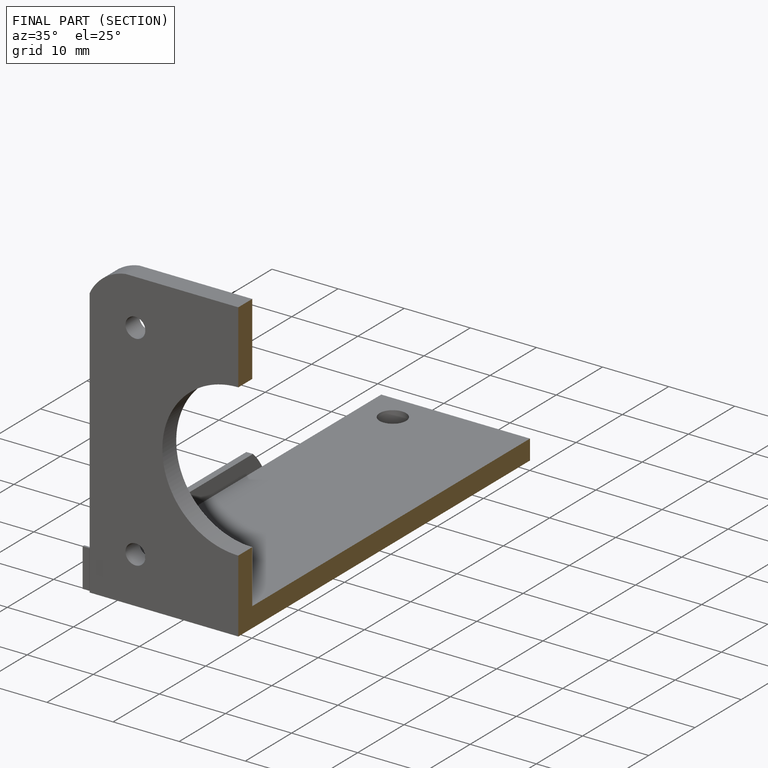
[diagram: finished part — half-section view (interior)]
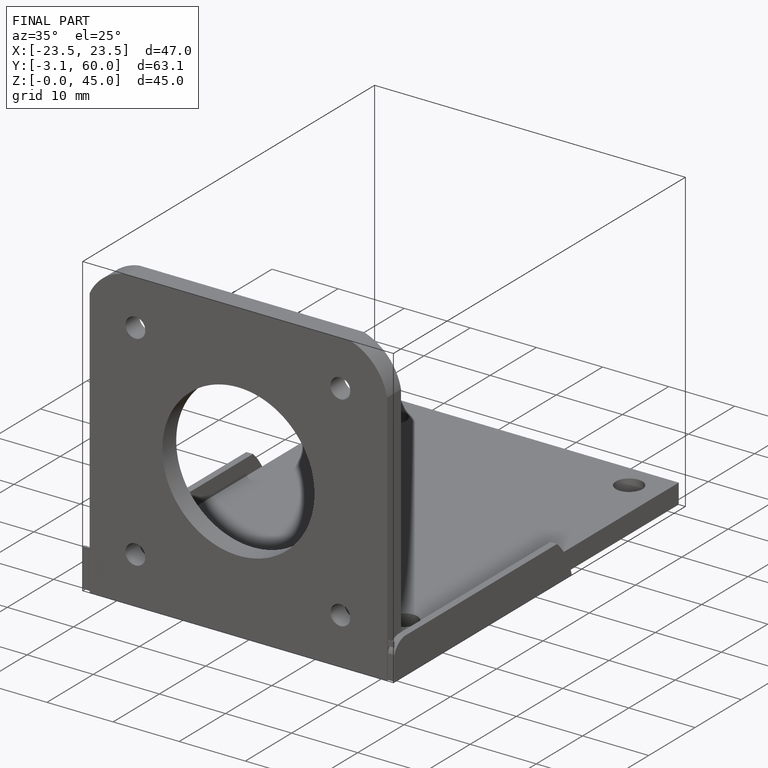
[diagram: finished part — iso view with bounding-box wireframe]
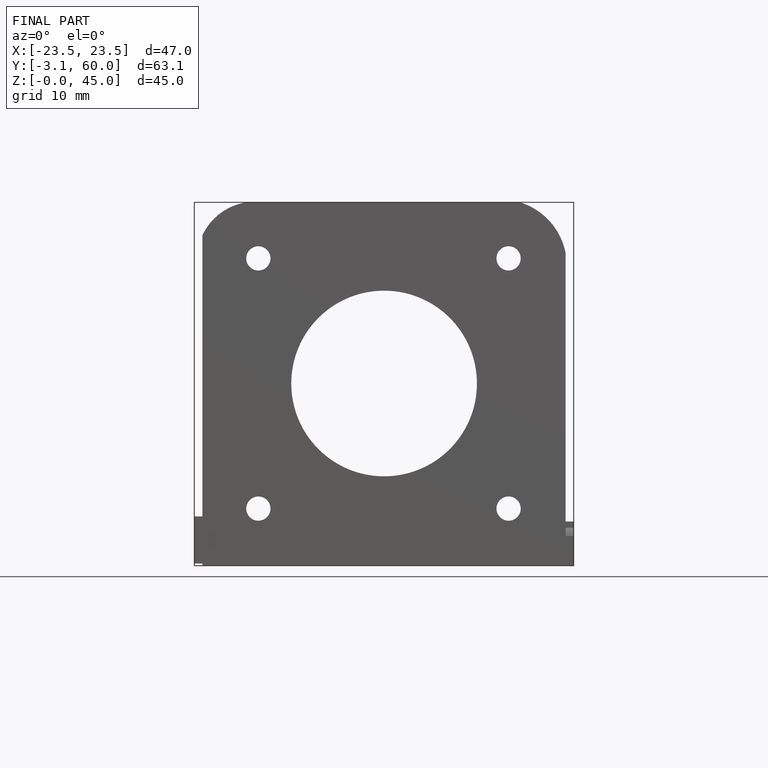
[diagram: finished part — front view with bounding-box wireframe]
